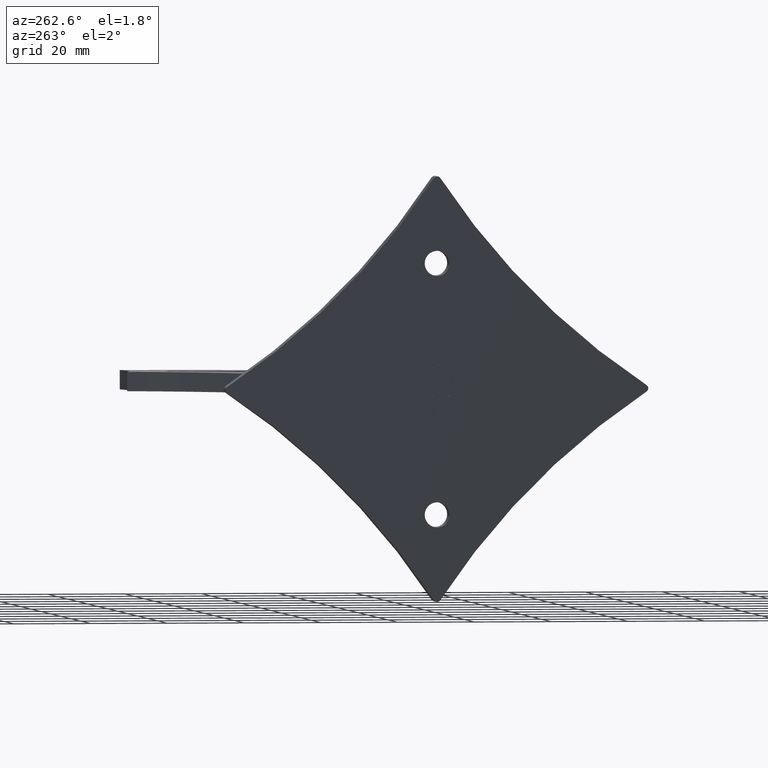
[diagram: clean part render]
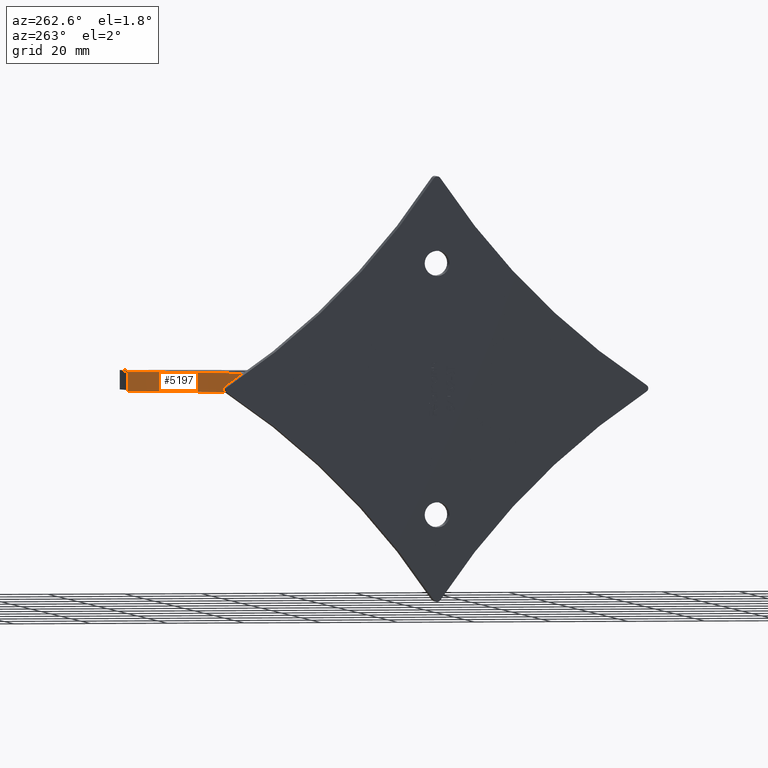
[diagram: same view with one face highlighted and labeled with its STEP entity id]
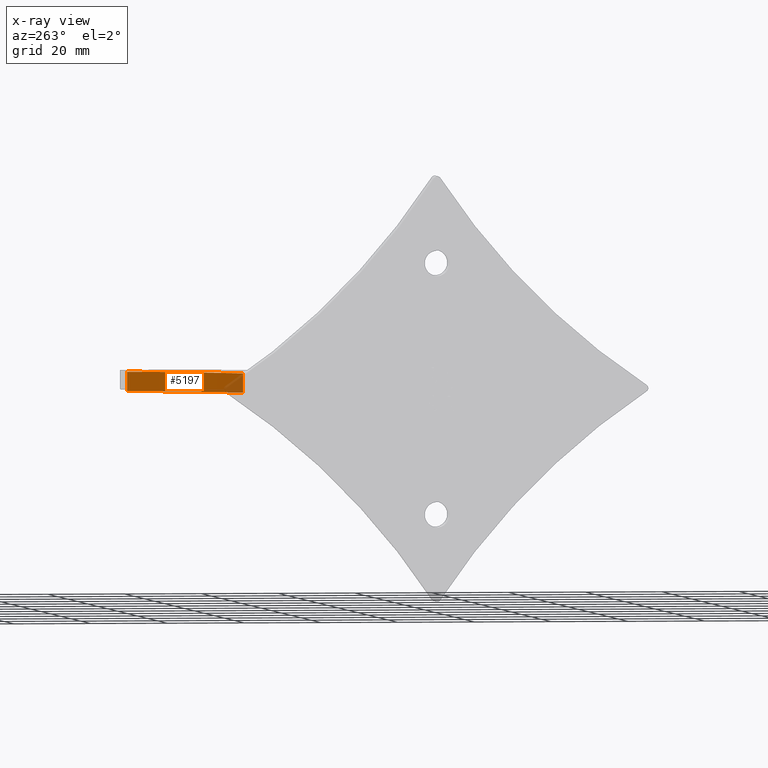
[diagram: x-ray of the same camera — body ghosted, the highlighted face saturated]
A machine part, auxiliary view. The second image highlights one B-rep face of the part: STEP entity #5197.
The next image is the same camera in x-ray: the body ghosted, the highlighted face saturated — about 11% of this face is hidden behind the body in this view.
In plain terms, the highlighted cylindrical surface (partial cylindrical patch) has radius 59.1184 mm, axis along (-0, -0, -1).
Its self-contained STEP definition (entity closure, byte-faithful):
#311 = VERTEX_POINT ( 'NONE', #8605 ) ;
#528 = ORIENTED_EDGE ( 'NONE', *, *, #10258, .T. ) ;
#581 = EDGE_CURVE ( 'NONE', #2625, #311, #2227, .T. ) ;
#1636 = AXIS2_PLACEMENT_3D ( 'NONE', #3087, #4835, #6625 ) ;
#2036 = EDGE_CURVE ( 'NONE', #9418, #311, #8616, .T. ) ;
#2227 = LINE ( 'NONE', #4559, #4073 ) ;
#2478 = EDGE_CURVE ( 'NONE', #9823, #9418, #4904, .T. ) ;
#2625 = VERTEX_POINT ( 'NONE', #9130 ) ;
#2960 = ORIENTED_EDGE ( 'NONE', *, *, #581, .T. ) ;
#3087 = CARTESIAN_POINT ( 'NONE',  ( 10.48173249005537144, 86.77038962985369608, 5.000000000000000000 ) ) ;
#3124 = CARTESIAN_POINT ( 'NONE',  ( 10.48173249005537144, 86.77038962985369608, 0.000000000000000000 ) ) ;
#4073 = VECTOR ( 'NONE', #6474, 1000.000000000000000 ) ;
#4082 = DIRECTION ( 'NONE',  ( -0.000000000000000000, 0.000000000000000000, 1.000000000000000000 ) ) ;
#4559 = CARTESIAN_POINT ( 'NONE',  ( 67.55377499043559908, 71.35072462010423067, 5.000000000000000000 ) ) ;
#4835 = DIRECTION ( 'NONE',  ( -0.000000000000000000, -0.000000000000000000, -1.000000000000000000 ) ) ;
#4904 = LINE ( 'NONE', #9999, #10305 ) ;
#5162 = EDGE_LOOP ( 'NONE', ( #6711, #10712, #528, #2960 ) ) ;
#5197 = ADVANCED_FACE ( 'NONE', ( #9186 ), #6760, .F. ) ;
#5795 = DIRECTION ( 'NONE',  ( -0.000000000000000000, 0.000000000000000000, 1.000000000000000000 ) ) ;
#6438 = CARTESIAN_POINT ( 'NONE',  ( 50.59001589773809826, 43.33872253927216889, 0.000000000000000000 ) ) ;
#6474 = DIRECTION ( 'NONE',  ( -0.000000000000000000, -0.000000000000000000, -1.000000000000000000 ) ) ;
#6625 = DIRECTION ( 'NONE',  ( -1.000000000000000000, 0.000000000000000000, 0.000000000000000000 ) ) ;
#6711 = ORIENTED_EDGE ( 'NONE', *, *, #2036, .F. ) ;
#6760 = CYLINDRICAL_SURFACE ( 'NONE', #1636, 59.11839057499874883 ) ;
#7206 = AXIS2_PLACEMENT_3D ( 'NONE', #3124, #5795, #10400 ) ;
#7722 = CARTESIAN_POINT ( 'NONE',  ( 50.59001589773809826, 43.33872253927216889, 5.000000000000000000 ) ) ;
#8605 = CARTESIAN_POINT ( 'NONE',  ( 67.55377499043559908, 71.35072462010423067, 0.000000000000000000 ) ) ;
#8616 = CIRCLE ( 'NONE', #7206, 59.11839057499874173 ) ;
#8628 = CARTESIAN_POINT ( 'NONE',  ( 10.48173249005537144, 86.77038962985369608, 5.000000000000000000 ) ) ;
#8921 = AXIS2_PLACEMENT_3D ( 'NONE', #8628, #4082, #10444 ) ;
#9130 = CARTESIAN_POINT ( 'NONE',  ( 67.55377499043559908, 71.35072462010423067, 5.000000000000000000 ) ) ;
#9186 = FACE_OUTER_BOUND ( 'NONE', #5162, .T. ) ;
#9418 = VERTEX_POINT ( 'NONE', #6438 ) ;
#9823 = VERTEX_POINT ( 'NONE', #7722 ) ;
#9920 = DIRECTION ( 'NONE',  ( -0.000000000000000000, -0.000000000000000000, -1.000000000000000000 ) ) ;
#9999 = CARTESIAN_POINT ( 'NONE',  ( 50.59001589773809826, 43.33872253927216889, 5.000000000000000000 ) ) ;
#10258 = EDGE_CURVE ( 'NONE', #9823, #2625, #11170, .T. ) ;
#10305 = VECTOR ( 'NONE', #9920, 1000.000000000000000 ) ;
#10400 = DIRECTION ( 'NONE',  ( 1.000000000000000000, 0.000000000000000000, 0.000000000000000000 ) ) ;
#10444 = DIRECTION ( 'NONE',  ( 1.000000000000000000, 0.000000000000000000, 0.000000000000000000 ) ) ;
#10712 = ORIENTED_EDGE ( 'NONE', *, *, #2478, .F. ) ;
#11170 = CIRCLE ( 'NONE', #8921, 59.11839057499874173 ) ;